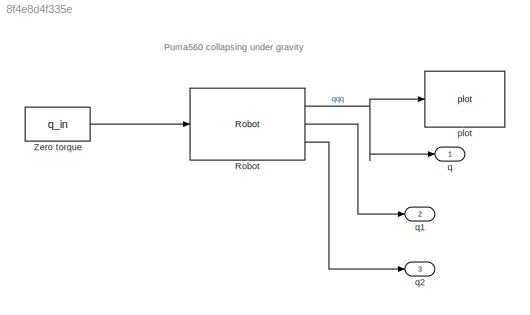
MODEL slx_8f4e8d4f335e
KIND model
BLOCK [Reference] Robot  REF=roblocks/Dynamics/Robot  (lib defined in mdl_2a292b13c81b, mdl_69400f8cfe22, +12 more)
  Ports = [1, 3]
  SourceBlock = roblocks/Dynamics/Robot
  q0 = q0
  robot = myRobot
BLOCK [Constant] Zero torque
  Value = q_in
BLOCK [Reference] plot  REF=roblocks/Robot Graphics/plot  (lib defined in mdl_2a292b13c81b, mdl_69400f8cfe22, +12 more)
  Ports = [1]
  SourceBlock = roblocks/Robot Graphics/plot
  fps = 25
  holdplot = on
  robot = p560
BLOCK [Outport] q
  IconDisplay = Port number
BLOCK [Outport] q1
  IconDisplay = Port number
  Port = 2
BLOCK [Outport] q2
  IconDisplay = Port number
  Port = 3
ANNOTATION (root): Puma560 collapsing under gravity
NET Robot:1 -> plot:1, q:1
LINE Robot:2 -> q1:1
LINE Robot:3 -> q2:1
LINE Zero torque:1 -> Robot:1
note: NET lines group one-source signal fan-out (src -> all destinations, sorted); 1:1 wires keep LINE
